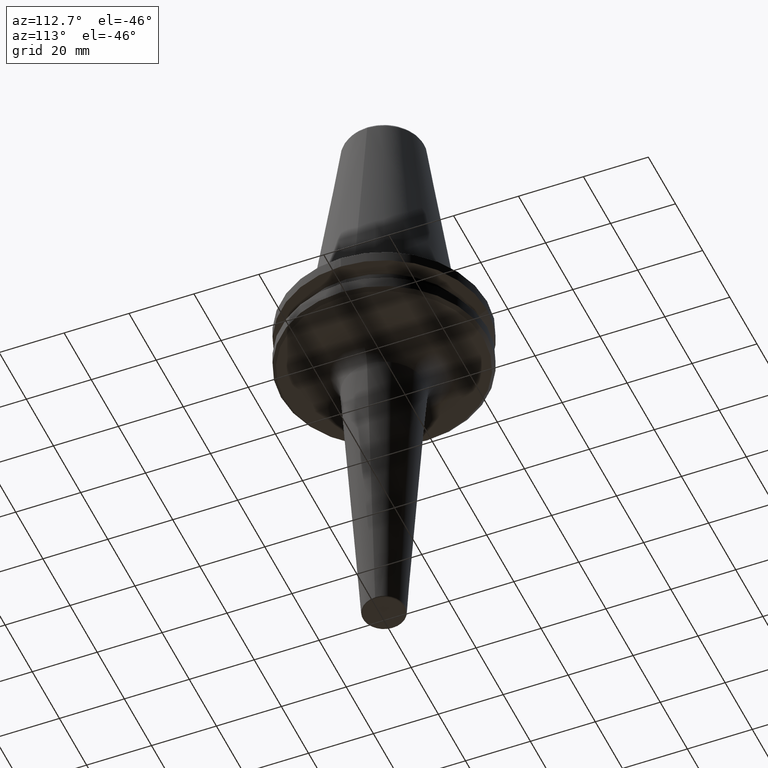
[diagram: clean part render]
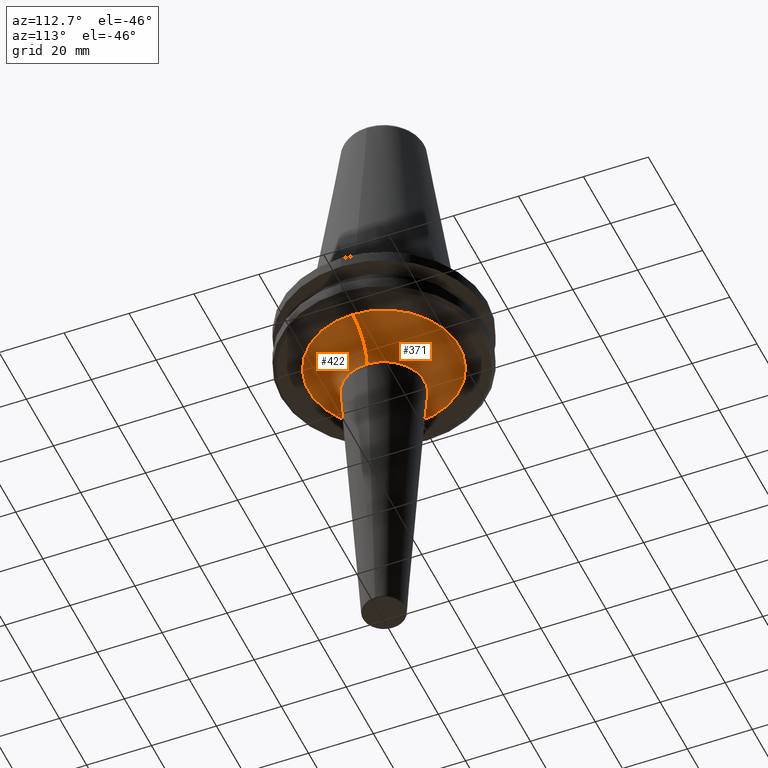
[diagram: same view with one multi-face feature highlighted, each face labeled with its STEP entity id]
A machine part, auxiliary view. The highlighted faces form ONE feature: a constant-radius fillet chain: 2 tangent blend faces with common blend radius 10.7126 mm. The faces share edges in the B-rep.
Their STEP definitions:
[1] entity #422 (Torus):
#83 = CARTESIAN_POINT ( 'NONE',  ( 0.0000000000000000000, 0.0000000000000000000, -29.81259095024764600 ) ) ;
#119 = DIRECTION ( 'NONE',  ( 1.224646799147353200E-016, 1.000000000000000000, 0.0000000000000000000 ) ) ;
#180 = DIRECTION ( 'NONE',  ( -0.0000000000000000000, -0.0000000000000000000, 1.000000000000000000 ) ) ;
#186 = VERTEX_POINT ( 'NONE', #1124 ) ;
#205 = ORIENTED_EDGE ( 'NONE', *, *, #666, .T. ) ;
#212 = CARTESIAN_POINT ( 'NONE',  ( 0.0000000000000000000, 0.0000000000000000000, -19.10000000000006200 ) ) ;
#237 = DIRECTION ( 'NONE',  ( 1.000000000000000000, 0.0000000000000000000, 0.0000000000000000000 ) ) ;
#269 = EDGE_CURVE ( 'NONE', #447, #186, #880, .T. ) ;
#284 = AXIS2_PLACEMENT_3D ( 'NONE', #83, #180, #632 ) ;
#330 = CARTESIAN_POINT ( 'NONE',  ( -23.18886425234604000, 2.839816838249805400E-015, -19.10000000000006200 ) ) ;
#341 = DIRECTION ( 'NONE',  ( 1.000000000000000000, 0.0000000000000000000, 0.0000000000000000000 ) ) ;
#374 = AXIS2_PLACEMENT_3D ( 'NONE', #1027, #458, #1113 ) ;
#422 = ADVANCED_FACE ( 'NONE', ( #737 ), #426, .F. ) ;
#426 = TOROIDAL_SURFACE ( 'NONE', #284, 23.18886425234604000, 10.71259095024758400 ) ;
#440 = AXIS2_PLACEMENT_3D ( 'NONE', #763, #119, #861 ) ;
#447 = VERTEX_POINT ( 'NONE', #1259 ) ;
#457 = ORIENTED_EDGE ( 'NONE', *, *, #678, .F. ) ;
#458 = DIRECTION ( 'NONE',  ( 0.0000000000000000000, -1.000000000000000000, 0.0000000000000000000 ) ) ;
#610 = CIRCLE ( 'NONE', #925, 23.18886425234604000 ) ;
#632 = DIRECTION ( 'NONE',  ( 1.000000000000000000, 0.0000000000000000000, 0.0000000000000000000 ) ) ;
#646 = VERTEX_POINT ( 'NONE', #330 ) ;
#650 = EDGE_CURVE ( 'NONE', #646, #705, #610, .T. ) ;
#666 = EDGE_CURVE ( 'NONE', #646, #447, #1007, .T. ) ;
#678 = EDGE_CURVE ( 'NONE', #705, #186, #779, .T. ) ;
#681 = CARTESIAN_POINT ( 'NONE',  ( 23.18886425234604000, 0.0000000000000000000, -19.10000000000006200 ) ) ;
#689 = DIRECTION ( 'NONE',  ( -0.0000000000000000000, -0.0000000000000000000, 1.000000000000000000 ) ) ;
#705 = VERTEX_POINT ( 'NONE', #681 ) ;
#737 = FACE_OUTER_BOUND ( 'NONE', #915, .T. ) ;
#738 = ORIENTED_EDGE ( 'NONE', *, *, #650, .F. ) ;
#763 = CARTESIAN_POINT ( 'NONE',  ( -23.18886425234604000, 2.839816838249805800E-015, -29.81259095024764600 ) ) ;
#779 = CIRCLE ( 'NONE', #374, 10.71259095024758200 ) ;
#861 = DIRECTION ( 'NONE',  ( -1.000000000000000000, 1.224646799147353500E-016, 0.0000000000000000000 ) ) ;
#880 = CIRCLE ( 'NONE', #1089, 12.50000000000000000 ) ;
#915 = EDGE_LOOP ( 'NONE', ( #738, #205, #980, #457 ) ) ;
#925 = AXIS2_PLACEMENT_3D ( 'NONE', #212, #935, #341 ) ;
#935 = DIRECTION ( 'NONE',  ( -0.0000000000000000000, -0.0000000000000000000, 1.000000000000000000 ) ) ;
#980 = ORIENTED_EDGE ( 'NONE', *, *, #269, .T. ) ;
#1007 = CIRCLE ( 'NONE', #440, 10.71259095024758600 ) ;
#1027 = CARTESIAN_POINT ( 'NONE',  ( 23.18886425234604000, 0.0000000000000000000, -29.81259095024764600 ) ) ;
#1089 = AXIS2_PLACEMENT_3D ( 'NONE', #1217, #689, #237 ) ;
#1113 = DIRECTION ( 'NONE',  ( 0.0000000000000000000, 0.0000000000000000000, -1.000000000000000000 ) ) ;
#1124 = CARTESIAN_POINT ( 'NONE',  ( 12.50000000000000000, 0.0000000000000000000, -29.10000000009080900 ) ) ;
#1217 = CARTESIAN_POINT ( 'NONE',  ( 0.0000000000000000000, 0.0000000000000000000, -29.10000000009080900 ) ) ;
#1259 = CARTESIAN_POINT ( 'NONE',  ( -12.50000000000000000, 1.530808498934191700E-015, -29.10000000009080900 ) ) ;
[2] entity #371 (Torus):
#8 = CIRCLE ( 'NONE', #771, 12.50000000000000000 ) ;
#119 = DIRECTION ( 'NONE',  ( 1.224646799147353200E-016, 1.000000000000000000, 0.0000000000000000000 ) ) ;
#185 = FACE_OUTER_BOUND ( 'NONE', #920, .T. ) ;
#186 = VERTEX_POINT ( 'NONE', #1124 ) ;
#279 = EDGE_CURVE ( 'NONE', #186, #447, #8, .T. ) ;
#327 = DIRECTION ( 'NONE',  ( -0.0000000000000000000, -0.0000000000000000000, 1.000000000000000000 ) ) ;
#330 = CARTESIAN_POINT ( 'NONE',  ( -23.18886425234604000, 2.839816838249805400E-015, -19.10000000000006200 ) ) ;
#331 = CARTESIAN_POINT ( 'NONE',  ( 0.0000000000000000000, 0.0000000000000000000, -19.10000000000006200 ) ) ;
#371 = ADVANCED_FACE ( 'NONE', ( #185 ), #488, .F. ) ;
#373 = DIRECTION ( 'NONE',  ( 1.000000000000000000, 0.0000000000000000000, 0.0000000000000000000 ) ) ;
#374 = AXIS2_PLACEMENT_3D ( 'NONE', #1027, #458, #1113 ) ;
#440 = AXIS2_PLACEMENT_3D ( 'NONE', #763, #119, #861 ) ;
#447 = VERTEX_POINT ( 'NONE', #1259 ) ;
#458 = DIRECTION ( 'NONE',  ( 0.0000000000000000000, -1.000000000000000000, 0.0000000000000000000 ) ) ;
#471 = AXIS2_PLACEMENT_3D ( 'NONE', #516, #987, #626 ) ;
#477 = CARTESIAN_POINT ( 'NONE',  ( 0.0000000000000000000, 0.0000000000000000000, -29.10000000009080900 ) ) ;
#488 = TOROIDAL_SURFACE ( 'NONE', #471, 23.18886425234604000, 10.71259095024758400 ) ;
#516 = CARTESIAN_POINT ( 'NONE',  ( 0.0000000000000000000, 0.0000000000000000000, -29.81259095024764600 ) ) ;
#626 = DIRECTION ( 'NONE',  ( 1.000000000000000000, 0.0000000000000000000, 0.0000000000000000000 ) ) ;
#646 = VERTEX_POINT ( 'NONE', #330 ) ;
#663 = DIRECTION ( 'NONE',  ( 1.000000000000000000, 0.0000000000000000000, 0.0000000000000000000 ) ) ;
#666 = EDGE_CURVE ( 'NONE', #646, #447, #1007, .T. ) ;
#678 = EDGE_CURVE ( 'NONE', #705, #186, #779, .T. ) ;
#681 = CARTESIAN_POINT ( 'NONE',  ( 23.18886425234604000, 0.0000000000000000000, -19.10000000000006200 ) ) ;
#705 = VERTEX_POINT ( 'NONE', #681 ) ;
#734 = CIRCLE ( 'NONE', #938, 23.18886425234604000 ) ;
#763 = CARTESIAN_POINT ( 'NONE',  ( -23.18886425234604000, 2.839816838249805800E-015, -29.81259095024764600 ) ) ;
#771 = AXIS2_PLACEMENT_3D ( 'NONE', #477, #1042, #373 ) ;
#779 = CIRCLE ( 'NONE', #374, 10.71259095024758200 ) ;
#861 = DIRECTION ( 'NONE',  ( -1.000000000000000000, 1.224646799147353500E-016, 0.0000000000000000000 ) ) ;
#920 = EDGE_LOOP ( 'NONE', ( #1174, #927, #1214, #971 ) ) ;
#927 = ORIENTED_EDGE ( 'NONE', *, *, #1209, .F. ) ;
#938 = AXIS2_PLACEMENT_3D ( 'NONE', #331, #327, #663 ) ;
#971 = ORIENTED_EDGE ( 'NONE', *, *, #279, .T. ) ;
#987 = DIRECTION ( 'NONE',  ( -0.0000000000000000000, -0.0000000000000000000, 1.000000000000000000 ) ) ;
#1007 = CIRCLE ( 'NONE', #440, 10.71259095024758600 ) ;
#1027 = CARTESIAN_POINT ( 'NONE',  ( 23.18886425234604000, 0.0000000000000000000, -29.81259095024764600 ) ) ;
#1042 = DIRECTION ( 'NONE',  ( -0.0000000000000000000, -0.0000000000000000000, 1.000000000000000000 ) ) ;
#1113 = DIRECTION ( 'NONE',  ( 0.0000000000000000000, 0.0000000000000000000, -1.000000000000000000 ) ) ;
#1124 = CARTESIAN_POINT ( 'NONE',  ( 12.50000000000000000, 0.0000000000000000000, -29.10000000009080900 ) ) ;
#1174 = ORIENTED_EDGE ( 'NONE', *, *, #666, .F. ) ;
#1209 = EDGE_CURVE ( 'NONE', #705, #646, #734, .T. ) ;
#1214 = ORIENTED_EDGE ( 'NONE', *, *, #678, .T. ) ;
#1259 = CARTESIAN_POINT ( 'NONE',  ( -12.50000000000000000, 1.530808498934191700E-015, -29.10000000009080900 ) ) ;